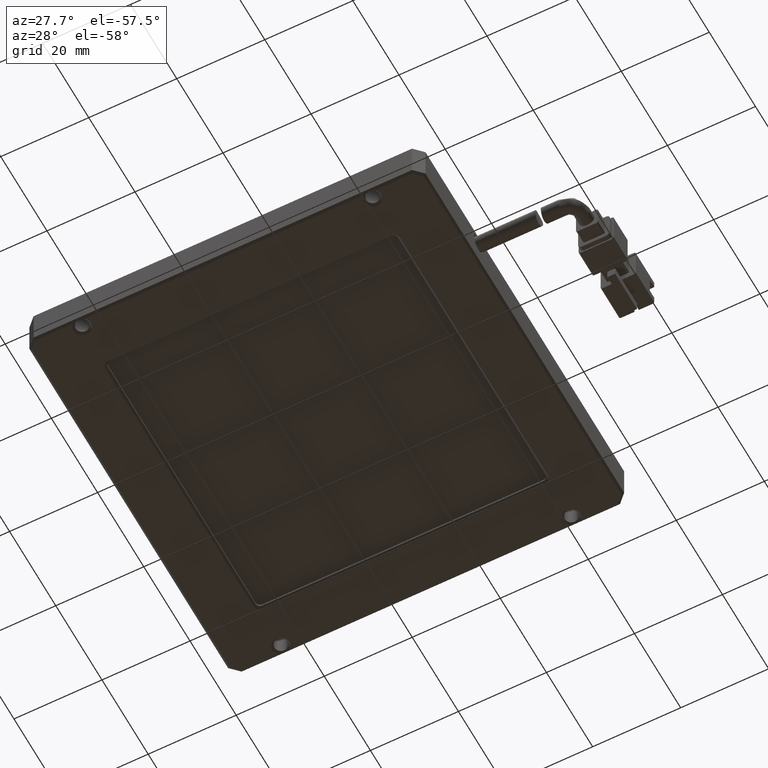
[diagram: clean part render]
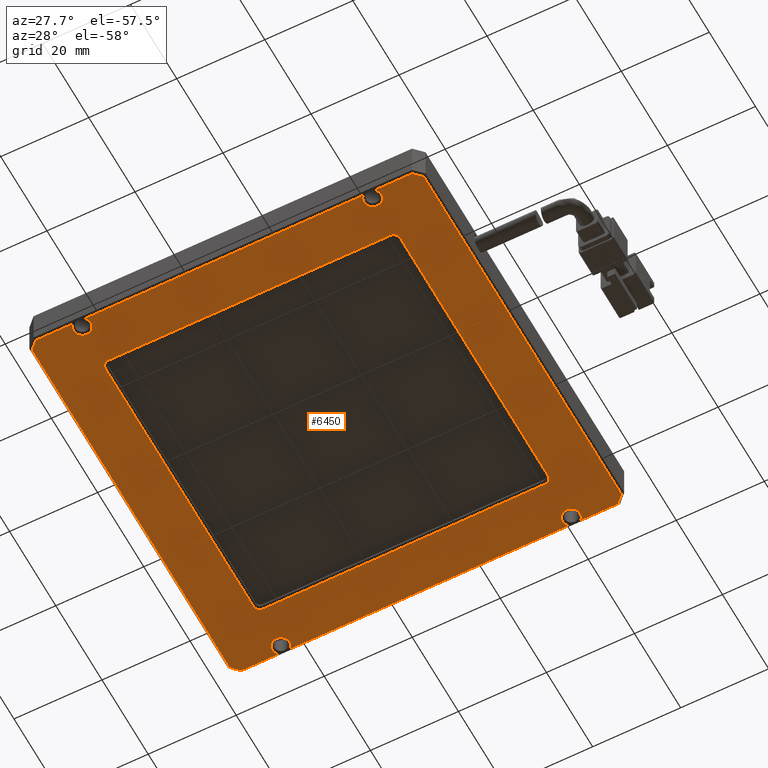
[diagram: same view with one face highlighted and labeled with its STEP entity id]
A machine part, auxiliary view. The second image highlights one B-rep face of the part: STEP entity #6450.
In plain terms, the highlighted planar face has unit normal (0, 0, -1).
Its self-contained STEP definition (entity closure, byte-faithful):
#224 = CARTESIAN_POINT ( 'NONE',  ( -65.07925925925926000, -15.05999999999999200, -2.999999999943156600 ) ) ;
#433 = FACE_OUTER_BOUND ( 'NONE', #9565, .T. ) ;
#475 = VERTEX_POINT ( 'NONE', #2181 ) ;
#509 = DIRECTION ( 'NONE',  ( -0.0000000000000000000, -0.0000000000000000000, 1.000000000000000000 ) ) ;
#515 = DIRECTION ( 'NONE',  ( -1.000000000000000000, 0.0000000000000000000, -0.0000000000000000000 ) ) ;
#605 = CARTESIAN_POINT ( 'NONE',  ( -74.87215247807270700, -16.55999999999999200, -3.000000000000000000 ) ) ;
#606 = DIRECTION ( 'NONE',  ( -0.0000000000000000000, -0.0000000000000000000, 1.000000000000000000 ) ) ;
#607 = EDGE_CURVE ( 'NONE', #475, #7741, #4373, .T. ) ;
#613 = CIRCLE ( 'NONE', #17851, 1.999999999921328700 ) ;
#670 = EDGE_CURVE ( 'NONE', #9635, #3807, #14570, .T. ) ;
#772 = ORIENTED_EDGE ( 'NONE', *, *, #12192, .T. ) ;
#929 = ORIENTED_EDGE ( 'NONE', *, *, #10877, .T. ) ;
#1027 = ORIENTED_EDGE ( 'NONE', *, *, #607, .T. ) ;
#1046 = VECTOR ( 'NONE', #15832, 1000.000000000000000 ) ;
#1052 = AXIS2_PLACEMENT_3D ( 'NONE', #1522, #11330, #2943 ) ;
#1067 = ORIENTED_EDGE ( 'NONE', *, *, #15503, .T. ) ;
#1085 = DIRECTION ( 'NONE',  ( -1.000000000000000000, 0.0000000000000000000, -0.0000000000000000000 ) ) ;
#1110 = CARTESIAN_POINT ( 'NONE',  ( 1.420740740740777900, -4.060000000000007600, -2.999999999999999600 ) ) ;
#1146 = CARTESIAN_POINT ( 'NONE',  ( -63.07925925930700800, -15.05999999999999200, -2.999999999943156600 ) ) ;
#1198 = ORIENTED_EDGE ( 'NONE', *, *, #3876, .T. ) ;
#1336 = EDGE_CURVE ( 'NONE', #7210, #7810, #15628, .T. ) ;
#1392 = CARTESIAN_POINT ( 'NONE',  ( 1.420740740740777900, 72.93999999999999800, -3.000000000000000000 ) ) ;
#1417 = EDGE_CURVE ( 'NONE', #2871, #9275, #2789, .T. ) ;
#1522 = CARTESIAN_POINT ( 'NONE',  ( 0.9207407407407497400, 70.93999999999999800, -3.000000000000000000 ) ) ;
#1641 = DIRECTION ( 'NONE',  ( -1.000000000000000000, 0.0000000000000000000, 0.0000000000000000000 ) ) ;
#1645 = CIRCLE ( 'NONE', #5120, 1.999999999952248400 ) ;
#1887 = DIRECTION ( 'NONE',  ( 0.0000000000000000000, 1.000000000000000000, 0.0000000000000000000 ) ) ;
#1924 = CARTESIAN_POINT ( 'NONE',  ( -66.40213491472324800, -16.56000000002841300, -2.999999999971578300 ) ) ;
#1988 = AXIS2_PLACEMENT_3D ( 'NONE', #224, #10046, #1641 ) ;
#2008 = VERTEX_POINT ( 'NONE', #1146 ) ;
#2157 = VECTOR ( 'NONE', #1085, 1000.000000000000000 ) ;
#2158 = ORIENTED_EDGE ( 'NONE', *, *, #1417, .T. ) ;
#2181 = CARTESIAN_POINT ( 'NONE',  ( -63.07925925930700800, 70.93999999999999800, -3.000000000000000000 ) ) ;
#2255 = ORIENTED_EDGE ( 'NONE', *, *, #3147, .T. ) ;
#2358 = VECTOR ( 'NONE', #8229, 1000.000000000000000 ) ;
#2399 = AXIS2_PLACEMENT_3D ( 'NONE', #10960, #2559, #12338 ) ;
#2559 = DIRECTION ( 'NONE',  ( -0.0000000000000000000, -0.0000000000000000000, 1.000000000000000000 ) ) ;
#2594 = CARTESIAN_POINT ( 'NONE',  ( -65.57925925925923100, 59.93999999999999100, -3.000000000000000000 ) ) ;
#2741 = ORIENTED_EDGE ( 'NONE', *, *, #3842, .T. ) ;
#2761 = EDGE_CURVE ( 'NONE', #6839, #9635, #17101, .T. ) ;
#2789 = LINE ( 'NONE', #14499, #13454 ) ;
#2871 = VERTEX_POINT ( 'NONE', #16192 ) ;
#2888 = VERTEX_POINT ( 'NONE', #16243 ) ;
#2943 = DIRECTION ( 'NONE',  ( -1.000000000000000000, 0.0000000000000000000, 0.0000000000000000000 ) ) ;
#2989 = CARTESIAN_POINT ( 'NONE',  ( -1.079259259180578700, -15.05999999999999000, -3.000000000000000000 ) ) ;
#3146 = EDGE_CURVE ( 'NONE', #12416, #6839, #8197, .T. ) ;
#3147 = EDGE_CURVE ( 'NONE', #12301, #475, #8649, .T. ) ;
#3184 = ORIENTED_EDGE ( 'NONE', *, *, #13880, .T. ) ;
#3204 = ORIENTED_EDGE ( 'NONE', *, *, #670, .T. ) ;
#3205 = AXIS2_PLACEMENT_3D ( 'NONE', #5257, #5081, #5028 ) ;
#3316 = CARTESIAN_POINT ( 'NONE',  ( 12.42074074074074600, -14.85289321881347400, -3.000000000000000000 ) ) ;
#3427 = LINE ( 'NONE', #13483, #6746 ) ;
#3540 = CARTESIAN_POINT ( 'NONE',  ( 10.71363395955419900, 72.43999999999998400, -2.999999999999996000 ) ) ;
#3564 = CARTESIAN_POINT ( 'NONE',  ( 2.243616396213607500, 72.43999999999999800, -3.000000000000000000 ) ) ;
#3593 = CARTESIAN_POINT ( 'NONE',  ( -0.07925925925925114700, 59.94000000000000500, -3.000000000000000000 ) ) ;
#3616 = ORIENTED_EDGE ( 'NONE', *, *, #17364, .T. ) ;
#3807 = VERTEX_POINT ( 'NONE', #16237 ) ;
#3842 = EDGE_CURVE ( 'NONE', #2888, #6978, #12928, .T. ) ;
#3876 = EDGE_CURVE ( 'NONE', #7587, #8656, #9263, .T. ) ;
#4018 = ORIENTED_EDGE ( 'NONE', *, *, #15980, .T. ) ;
#4036 = CARTESIAN_POINT ( 'NONE',  ( 10.71363395955419900, -16.55999999999999200, -3.000000000000001800 ) ) ;
#4140 = AXIS2_PLACEMENT_3D ( 'NONE', #4908, #4858, #4810 ) ;
#4344 = CARTESIAN_POINT ( 'NONE',  ( -77.07925925925924600, 72.43999999999999800, -3.000000000000000000 ) ) ;
#4373 = CIRCLE ( 'NONE', #7628, 1.999999999952248400 ) ;
#4435 = CARTESIAN_POINT ( 'NONE',  ( -0.07925925925922339100, -5.559999999993400400, -2.999999999985789100 ) ) ;
#4704 = CARTESIAN_POINT ( 'NONE',  ( -77.07925925925924600, 72.43999999999999800, -3.000000000000000000 ) ) ;
#4770 = CIRCLE ( 'NONE', #12581, 1.499999999930903700 ) ;
#4810 = DIRECTION ( 'NONE',  ( -1.000000000000000000, 0.0000000000000000000, 0.0000000000000000000 ) ) ;
#4837 = LINE ( 'NONE', #3316, #1046 ) ;
#4858 = DIRECTION ( 'NONE',  ( -0.0000000000000000000, -0.0000000000000000000, 1.000000000000000000 ) ) ;
#4908 = CARTESIAN_POINT ( 'NONE',  ( -65.07925925925926000, 70.93999999999999800, -3.000000000000000000 ) ) ;
#5017 = EDGE_CURVE ( 'NONE', #9874, #9656, #4770, .T. ) ;
#5028 = DIRECTION ( 'NONE',  ( -1.000000000000000000, 0.0000000000000000000, 0.0000000000000000000 ) ) ;
#5035 = DIRECTION ( 'NONE',  ( -1.000000000000000000, 0.0000000000000000000, 0.0000000000000000000 ) ) ;
#5040 = CIRCLE ( 'NONE', #1988, 1.999999999952248400 ) ;
#5052 = CARTESIAN_POINT ( 'NONE',  ( -64.07925925925923100, -5.559999999968503000, -2.999999999985789100 ) ) ;
#5076 = ORIENTED_EDGE ( 'NONE', *, *, #11052, .T. ) ;
#5081 = DIRECTION ( 'NONE',  ( -0.0000000000000000000, -0.0000000000000000000, 1.000000000000000000 ) ) ;
#5120 = AXIS2_PLACEMENT_3D ( 'NONE', #14518, #6246, #15878 ) ;
#5143 = VERTEX_POINT ( 'NONE', #16437 ) ;
#5236 = CARTESIAN_POINT ( 'NONE',  ( 10.71363395955417300, 72.43999999999999800, -3.000000000000000000 ) ) ;
#5257 = CARTESIAN_POINT ( 'NONE',  ( 0.9207407407407497400, -15.05999999999999000, -3.000000000000000000 ) ) ;
#5315 = VECTOR ( 'NONE', #16675, 1000.000000000000000 ) ;
#5359 = VECTOR ( 'NONE', #7438, 1000.000000000000000 ) ;
#5425 = EDGE_CURVE ( 'NONE', #7741, #9958, #11019, .T. ) ;
#5431 = DIRECTION ( 'NONE',  ( -0.0000000000000000000, -1.000000000000000000, -0.0000000000000000000 ) ) ;
#5553 = VECTOR ( 'NONE', #14285, 1000.000000000000000 ) ;
#5562 = EDGE_CURVE ( 'NONE', #9275, #8901, #6042, .T. ) ;
#5580 = CARTESIAN_POINT ( 'NONE',  ( -77.07925925925924600, -16.55999999999999200, -3.000000000000000000 ) ) ;
#5924 = EDGE_CURVE ( 'NONE', #7928, #12301, #17698, .T. ) ;
#5959 = LINE ( 'NONE', #8100, #2157 ) ;
#6042 = LINE ( 'NONE', #17075, #17074 ) ;
#6045 = CIRCLE ( 'NONE', #16225, 1.499999999930903700 ) ;
#6103 = DIRECTION ( 'NONE',  ( -1.000000000000000000, 0.0000000000000000000, -0.0000000000000000000 ) ) ;
#6158 = DIRECTION ( 'NONE',  ( -0.0000000000000000000, -0.0000000000000000000, 1.000000000000000000 ) ) ;
#6246 = DIRECTION ( 'NONE',  ( -0.0000000000000000000, -0.0000000000000000000, 1.000000000000000000 ) ) ;
#6265 = AXIS2_PLACEMENT_3D ( 'NONE', #14427, #6158, #15812 ) ;
#6280 = VERTEX_POINT ( 'NONE', #5052 ) ;
#6403 = ORIENTED_EDGE ( 'NONE', *, *, #11018, .T. ) ;
#6435 = ORIENTED_EDGE ( 'NONE', *, *, #14657, .T. ) ;
#6450 = ADVANCED_FACE ( 'NONE', ( #433, #11157 ), #9529, .T. ) ;
#6531 = AXIS2_PLACEMENT_3D ( 'NONE', #7479, #17167, #8895 ) ;
#6668 = DIRECTION ( 'NONE',  ( 0.7071067811865474600, -0.7071067811865474600, 0.0000000000000000000 ) ) ;
#6745 = CIRCLE ( 'NONE', #16576, 1.499999999966375300 ) ;
#6746 = VECTOR ( 'NONE', #7966, 1000.000000000000100 ) ;
#6839 = VERTEX_POINT ( 'NONE', #2989 ) ;
#6978 = VERTEX_POINT ( 'NONE', #1924 ) ;
#7144 = VERTEX_POINT ( 'NONE', #13476 ) ;
#7210 = VERTEX_POINT ( 'NONE', #1110 ) ;
#7232 = EDGE_CURVE ( 'NONE', #9656, #7144, #11012, .T. ) ;
#7319 = ORIENTED_EDGE ( 'NONE', *, *, #5562, .T. ) ;
#7333 = VECTOR ( 'NONE', #5431, 1000.000000000000000 ) ;
#7342 = VECTOR ( 'NONE', #15426, 1000.000000000000000 ) ;
#7374 = DIRECTION ( 'NONE',  ( -1.000000000000000000, 2.775557561690745200E-014, 0.0000000000000000000 ) ) ;
#7428 = DIRECTION ( 'NONE',  ( -0.0000000000000000000, -0.0000000000000000000, 1.000000000000000000 ) ) ;
#7438 = DIRECTION ( 'NONE',  ( 1.000000000000000000, -0.0000000000000000000, 0.0000000000000000000 ) ) ;
#7479 = CARTESIAN_POINT ( 'NONE',  ( 0.9207407407407497400, 70.93999999999999800, -3.000000000000000000 ) ) ;
#7488 = CARTESIAN_POINT ( 'NONE',  ( -64.07925925925923100, 59.94000000000000500, -3.000000000000000000 ) ) ;
#7546 = ORIENTED_EDGE ( 'NONE', *, *, #16352, .T. ) ;
#7587 = VERTEX_POINT ( 'NONE', #3564 ) ;
#7610 = ORIENTED_EDGE ( 'NONE', *, *, #5017, .T. ) ;
#7623 = CIRCLE ( 'NONE', #6531, 1.999999999921328700 ) ;
#7628 = AXIS2_PLACEMENT_3D ( 'NONE', #15750, #14592, #14543 ) ;
#7722 = CARTESIAN_POINT ( 'NONE',  ( -67.07925925921149700, 70.93999999999999800, -3.000000000000000000 ) ) ;
#7741 = VERTEX_POINT ( 'NONE', #16401 ) ;
#7810 = VERTEX_POINT ( 'NONE', #13696 ) ;
#7928 = VERTEX_POINT ( 'NONE', #13007 ) ;
#7963 = VERTEX_POINT ( 'NONE', #10311 ) ;
#7966 = DIRECTION ( 'NONE',  ( -0.7071067811865445800, 0.7071067811865504600, 0.0000000000000000000 ) ) ;
#8003 = DIRECTION ( 'NONE',  ( -0.0000000000000000000, -0.0000000000000000000, 1.000000000000000000 ) ) ;
#8037 = AXIS2_PLACEMENT_3D ( 'NONE', #3593, #13315, #5035 ) ;
#8100 = CARTESIAN_POINT ( 'NONE',  ( -77.07925925925924600, -16.55999999999999200, -3.000000000000000000 ) ) ;
#8197 = CIRCLE ( 'NONE', #3205, 1.999999999921328700 ) ;
#8206 = EDGE_CURVE ( 'NONE', #6978, #9516, #5959, .T. ) ;
#8229 = DIRECTION ( 'NONE',  ( 1.000000000000000000, -0.0000000000000000000, 0.0000000000000000000 ) ) ;
#8277 = CARTESIAN_POINT ( 'NONE',  ( -77.07925925925924600, 72.93999999999999800, -3.000000000000000000 ) ) ;
#8294 = VECTOR ( 'NONE', #1887, 1000.000000000000000 ) ;
#8363 = ORIENTED_EDGE ( 'NONE', *, *, #11206, .T. ) ;
#8456 = LINE ( 'NONE', #10325, #12127 ) ;
#8598 = VERTEX_POINT ( 'NONE', #11859 ) ;
#8649 = CIRCLE ( 'NONE', #4140, 1.999999999952248400 ) ;
#8656 = VERTEX_POINT ( 'NONE', #3540 ) ;
#8814 = DIRECTION ( 'NONE',  ( 0.7071067811865445800, 0.7071067811865503500, 0.0000000000000000000 ) ) ;
#8895 = DIRECTION ( 'NONE',  ( -1.000000000000000000, 0.0000000000000000000, 0.0000000000000000000 ) ) ;
#8901 = VERTEX_POINT ( 'NONE', #11159 ) ;
#8921 = ORIENTED_EDGE ( 'NONE', *, *, #12823, .T. ) ;
#8933 = CARTESIAN_POINT ( 'NONE',  ( -0.07925925925922339100, -4.059999999999994300, -3.000000000000000000 ) ) ;
#9025 = CARTESIAN_POINT ( 'NONE',  ( 0.9207407407407497400, 70.93999999999999800, -3.000000000000000000 ) ) ;
#9122 = CARTESIAN_POINT ( 'NONE',  ( -77.07925925925924600, -16.55999999999999200, -3.000000000000000000 ) ) ;
#9157 = ORIENTED_EDGE ( 'NONE', *, *, #3146, .T. ) ;
#9263 = LINE ( 'NONE', #15410, #5553 ) ;
#9275 = VERTEX_POINT ( 'NONE', #9784 ) ;
#9516 = VERTEX_POINT ( 'NONE', #605 ) ;
#9525 = CARTESIAN_POINT ( 'NONE',  ( -0.4021349147320801800, -16.55999999999999200, -3.000000000000000000 ) ) ;
#9529 = PLANE ( 'NONE',  #12265 ) ;
#9565 = EDGE_LOOP ( 'NONE', ( #3616, #9157, #13766, #3204, #8921, #5076, #2741, #15562, #4018, #2158, #7319, #15814, #13540, #2255, #1027, #12459, #772, #8363, #6403, #1198, #15069, #3184, #1067, #6435 ) ) ;
#9635 = VERTEX_POINT ( 'NONE', #9525 ) ;
#9646 = DIRECTION ( 'NONE',  ( -1.000000000000000000, 0.0000000000000000000, -0.0000000000000000000 ) ) ;
#9656 = VERTEX_POINT ( 'NONE', #2594 ) ;
#9673 = VERTEX_POINT ( 'NONE', #4036 ) ;
#9784 = CARTESIAN_POINT ( 'NONE',  ( -76.57925925925924600, 70.73289321881341600, -2.999999999999999100 ) ) ;
#9874 = VERTEX_POINT ( 'NONE', #11434 ) ;
#9958 = VERTEX_POINT ( 'NONE', #13035 ) ;
#10030 = VERTEX_POINT ( 'NONE', #10405 ) ;
#10046 = DIRECTION ( 'NONE',  ( -0.0000000000000000000, -0.0000000000000000000, 1.000000000000000000 ) ) ;
#10311 = CARTESIAN_POINT ( 'NONE',  ( 12.42074074074073300, 70.73289321881344400, -3.000000000000001800 ) ) ;
#10319 = DIRECTION ( 'NONE',  ( -1.000000000000000000, 0.0000000000000000000, 0.0000000000000000000 ) ) ;
#10325 = CARTESIAN_POINT ( 'NONE',  ( -77.07925925925924600, 61.44000000000001200, -3.000000000000000000 ) ) ;
#10405 = CARTESIAN_POINT ( 'NONE',  ( -1.079259259180578700, 70.93999999999999800, -3.000000000000000000 ) ) ;
#10419 = DIRECTION ( 'NONE',  ( -1.000000000000000000, 0.0000000000000000000, 0.0000000000000000000 ) ) ;
#10609 = VERTEX_POINT ( 'NONE', #17249 ) ;
#10690 = DIRECTION ( 'NONE',  ( -1.000000000000000000, 0.0000000000000000000, 0.0000000000000000000 ) ) ;
#10717 = LINE ( 'NONE', #5236, #14367 ) ;
#10801 = EDGE_CURVE ( 'NONE', #8656, #7963, #10717, .T. ) ;
#10822 = ORIENTED_EDGE ( 'NONE', *, *, #1336, .T. ) ;
#10877 = EDGE_CURVE ( 'NONE', #6280, #11032, #13474, .T. ) ;
#10911 = VERTEX_POINT ( 'NONE', #16461 ) ;
#10915 = VECTOR ( 'NONE', #6103, 1000.000000000000000 ) ;
#10960 = CARTESIAN_POINT ( 'NONE',  ( -65.07925925925926000, 70.93999999999999800, -3.000000000000000000 ) ) ;
#11012 = LINE ( 'NONE', #12345, #7333 ) ;
#11018 = EDGE_CURVE ( 'NONE', #10911, #7587, #16043, .T. ) ;
#11019 = LINE ( 'NONE', #4344, #7342 ) ;
#11032 = VERTEX_POINT ( 'NONE', #4435 ) ;
#11052 = EDGE_CURVE ( 'NONE', #2008, #2888, #5040, .T. ) ;
#11123 = VECTOR ( 'NONE', #16647, 1000.000000000000000 ) ;
#11157 = FACE_BOUND ( 'NONE', #12171, .T. ) ;
#11159 = CARTESIAN_POINT ( 'NONE',  ( -74.87215247807269200, 72.43999999999998400, -3.000000000000000000 ) ) ;
#11186 = ORIENTED_EDGE ( 'NONE', *, *, #16571, .T. ) ;
#11206 = EDGE_CURVE ( 'NONE', #10030, #10911, #613, .T. ) ;
#11330 = DIRECTION ( 'NONE',  ( -0.0000000000000000000, -0.0000000000000000000, 1.000000000000000000 ) ) ;
#11434 = CARTESIAN_POINT ( 'NONE',  ( -64.07925925925923100, 61.43999999998227000, -3.000000000000000000 ) ) ;
#11739 = DIRECTION ( 'NONE',  ( -0.0000000000000000000, -0.0000000000000000000, 1.000000000000000000 ) ) ;
#11859 = CARTESIAN_POINT ( 'NONE',  ( 12.42074074074073300, -14.85289321881347400, -3.000000000000000000 ) ) ;
#12127 = VECTOR ( 'NONE', #515, 1000.000000000000000 ) ;
#12171 = EDGE_LOOP ( 'NONE', ( #15159, #11186, #929, #13425, #10822, #17272, #7546, #7610 ) ) ;
#12192 = EDGE_CURVE ( 'NONE', #9958, #10030, #7623, .T. ) ;
#12265 = AXIS2_PLACEMENT_3D ( 'NONE', #8277, #17948, #9646 ) ;
#12301 = VERTEX_POINT ( 'NONE', #7722 ) ;
#12332 = EDGE_CURVE ( 'NONE', #7810, #10609, #16667, .T. ) ;
#12338 = DIRECTION ( 'NONE',  ( -1.000000000000000000, -1.387778780814580000E-014, 0.0000000000000000000 ) ) ;
#12345 = CARTESIAN_POINT ( 'NONE',  ( -65.57925925925923100, 72.93999999999999800, -3.000000000000000000 ) ) ;
#12416 = VERTEX_POINT ( 'NONE', #16196 ) ;
#12459 = ORIENTED_EDGE ( 'NONE', *, *, #5425, .T. ) ;
#12581 = AXIS2_PLACEMENT_3D ( 'NONE', #7488, #7428, #7374 ) ;
#12786 = CARTESIAN_POINT ( 'NONE',  ( 0.9207407407407497400, -15.05999999999999000, -3.000000000000000000 ) ) ;
#12813 = EDGE_CURVE ( 'NONE', #11032, #7210, #6745, .T. ) ;
#12823 = EDGE_CURVE ( 'NONE', #3807, #2008, #1645, .T. ) ;
#12928 = CIRCLE ( 'NONE', #17643, 1.999999999952248400 ) ;
#13007 = CARTESIAN_POINT ( 'NONE',  ( -66.40213491475545000, 72.43999999999999800, -3.000000000000000000 ) ) ;
#13035 = CARTESIAN_POINT ( 'NONE',  ( -0.4021349147320801800, 72.43999999999999800, -3.000000000000000000 ) ) ;
#13315 = DIRECTION ( 'NONE',  ( -0.0000000000000000000, -0.0000000000000000000, 1.000000000000000000 ) ) ;
#13425 = ORIENTED_EDGE ( 'NONE', *, *, #12813, .T. ) ;
#13454 = VECTOR ( 'NONE', #13626, 1000.000000000000000 ) ;
#13474 = LINE ( 'NONE', #15082, #2358 ) ;
#13476 = CARTESIAN_POINT ( 'NONE',  ( -65.57925925924149600, -4.059999999999994300, -3.000000000000000000 ) ) ;
#13483 = CARTESIAN_POINT ( 'NONE',  ( -74.87215247807270700, -16.55999999999999200, -3.000000000000000000 ) ) ;
#13540 = ORIENTED_EDGE ( 'NONE', *, *, #5924, .T. ) ;
#13626 = DIRECTION ( 'NONE',  ( 0.0000000000000000000, 1.000000000000000000, 0.0000000000000000000 ) ) ;
#13696 = CARTESIAN_POINT ( 'NONE',  ( 1.420740740751449800, 59.94000000000000500, -3.000000000000000000 ) ) ;
#13766 = ORIENTED_EDGE ( 'NONE', *, *, #2761, .T. ) ;
#13880 = EDGE_CURVE ( 'NONE', #7963, #8598, #15907, .T. ) ;
#14013 = DIRECTION ( 'NONE',  ( -1.000000000000000000, 0.0000000000000000000, 0.0000000000000000000 ) ) ;
#14032 = DIRECTION ( 'NONE',  ( -0.0000000000000000000, -0.0000000000000000000, 1.000000000000000000 ) ) ;
#14076 = CARTESIAN_POINT ( 'NONE',  ( -65.07925925925926000, -15.05999999999999200, -2.999999999943156600 ) ) ;
#14193 = CIRCLE ( 'NONE', #6265, 1.999999999921328700 ) ;
#14241 = AXIS2_PLACEMENT_3D ( 'NONE', #12786, #11739, #10690 ) ;
#14285 = DIRECTION ( 'NONE',  ( 1.000000000000000000, -0.0000000000000000000, 0.0000000000000000000 ) ) ;
#14367 = VECTOR ( 'NONE', #6668, 1000.000000000000100 ) ;
#14427 = CARTESIAN_POINT ( 'NONE',  ( 0.9207407407407497400, -15.05999999999999000, -3.000000000000000000 ) ) ;
#14499 = CARTESIAN_POINT ( 'NONE',  ( -76.57925925925924600, 72.93999999999999800, -3.000000000000000000 ) ) ;
#14518 = CARTESIAN_POINT ( 'NONE',  ( -65.07925925925926000, -15.05999999999999200, -2.999999999943156600 ) ) ;
#14543 = DIRECTION ( 'NONE',  ( -1.000000000000000000, -6.938893904072900200E-015, 0.0000000000000000000 ) ) ;
#14570 = LINE ( 'NONE', #9122, #10915 ) ;
#14592 = DIRECTION ( 'NONE',  ( -0.0000000000000000000, -0.0000000000000000000, 1.000000000000000000 ) ) ;
#14657 = EDGE_CURVE ( 'NONE', #9673, #5143, #14771, .T. ) ;
#14771 = LINE ( 'NONE', #5580, #11123 ) ;
#15069 = ORIENTED_EDGE ( 'NONE', *, *, #10801, .T. ) ;
#15082 = CARTESIAN_POINT ( 'NONE',  ( -77.07925925925924600, -5.559999999999995200, -3.000000000000000000 ) ) ;
#15159 = ORIENTED_EDGE ( 'NONE', *, *, #7232, .T. ) ;
#15347 = CARTESIAN_POINT ( 'NONE',  ( 12.42074074074074600, 72.93999999999999800, -3.000000000000000000 ) ) ;
#15410 = CARTESIAN_POINT ( 'NONE',  ( -77.07925925925924600, 72.43999999999999800, -3.000000000000000000 ) ) ;
#15426 = DIRECTION ( 'NONE',  ( 1.000000000000000000, -0.0000000000000000000, 0.0000000000000000000 ) ) ;
#15503 = EDGE_CURVE ( 'NONE', #8598, #9673, #4837, .T. ) ;
#15562 = ORIENTED_EDGE ( 'NONE', *, *, #8206, .T. ) ;
#15628 = LINE ( 'NONE', #1392, #8294 ) ;
#15750 = CARTESIAN_POINT ( 'NONE',  ( -65.07925925925926000, 70.93999999999999800, -3.000000000000000000 ) ) ;
#15812 = DIRECTION ( 'NONE',  ( -1.000000000000000000, -1.734723476045043600E-015, 0.0000000000000000000 ) ) ;
#15814 = ORIENTED_EDGE ( 'NONE', *, *, #16926, .T. ) ;
#15832 = DIRECTION ( 'NONE',  ( -0.7071067811865532300, -0.7071067811865418000, 0.0000000000000000000 ) ) ;
#15878 = DIRECTION ( 'NONE',  ( -1.000000000000000000, 1.387778780814580000E-014, 0.0000000000000000000 ) ) ;
#15907 = LINE ( 'NONE', #15347, #5315 ) ;
#15948 = LINE ( 'NONE', #4704, #5359 ) ;
#15980 = EDGE_CURVE ( 'NONE', #9516, #2871, #3427, .T. ) ;
#16043 = CIRCLE ( 'NONE', #1052, 1.999999999921328700 ) ;
#16192 = CARTESIAN_POINT ( 'NONE',  ( -76.57925925925924600, -14.85289321881343100, -3.000000000000000000 ) ) ;
#16196 = CARTESIAN_POINT ( 'NONE',  ( 2.920740740662078200, -15.05999999999999000, -3.000000000000000000 ) ) ;
#16225 = AXIS2_PLACEMENT_3D ( 'NONE', #16236, #8003, #17664 ) ;
#16236 = CARTESIAN_POINT ( 'NONE',  ( -64.07925925925923100, -4.059999999999994300, -3.000000000000000000 ) ) ;
#16237 = CARTESIAN_POINT ( 'NONE',  ( -63.75638360379526400, -16.56000000002841300, -2.999999999971578300 ) ) ;
#16243 = CARTESIAN_POINT ( 'NONE',  ( -67.07925925921149700, -15.05999999999999200, -2.999999999943156600 ) ) ;
#16352 = EDGE_CURVE ( 'NONE', #10609, #9874, #8456, .T. ) ;
#16401 = CARTESIAN_POINT ( 'NONE',  ( -63.75638360376304100, 72.43999999999999800, -3.000000000000000000 ) ) ;
#16437 = CARTESIAN_POINT ( 'NONE',  ( 2.243616396213607500, -16.55999999999999200, -3.000000000000000000 ) ) ;
#16461 = CARTESIAN_POINT ( 'NONE',  ( 2.920740740662078200, 70.93999999999999800, -3.000000000000000000 ) ) ;
#16571 = EDGE_CURVE ( 'NONE', #7144, #6280, #6045, .T. ) ;
#16576 = AXIS2_PLACEMENT_3D ( 'NONE', #8933, #509, #10319 ) ;
#16647 = DIRECTION ( 'NONE',  ( -1.000000000000000000, 0.0000000000000000000, -0.0000000000000000000 ) ) ;
#16667 = CIRCLE ( 'NONE', #8037, 1.499999999966347800 ) ;
#16675 = DIRECTION ( 'NONE',  ( -0.0000000000000000000, -1.000000000000000000, -0.0000000000000000000 ) ) ;
#16926 = EDGE_CURVE ( 'NONE', #8901, #7928, #15948, .T. ) ;
#17074 = VECTOR ( 'NONE', #8814, 1000.000000000000100 ) ;
#17075 = CARTESIAN_POINT ( 'NONE',  ( -76.57925925925924600, 70.73289321881343000, -3.000000000000000000 ) ) ;
#17101 = CIRCLE ( 'NONE', #14241, 1.999999999921328700 ) ;
#17167 = DIRECTION ( 'NONE',  ( -0.0000000000000000000, -0.0000000000000000000, 1.000000000000000000 ) ) ;
#17249 = CARTESIAN_POINT ( 'NONE',  ( -0.07925925925923726900, 61.44000000000001200, -3.000000000000000000 ) ) ;
#17272 = ORIENTED_EDGE ( 'NONE', *, *, #12332, .T. ) ;
#17364 = EDGE_CURVE ( 'NONE', #5143, #12416, #14193, .T. ) ;
#17643 = AXIS2_PLACEMENT_3D ( 'NONE', #14076, #14032, #14013 ) ;
#17664 = DIRECTION ( 'NONE',  ( -1.000000000000000000, 0.0000000000000000000, 0.0000000000000000000 ) ) ;
#17698 = CIRCLE ( 'NONE', #2399, 1.999999999952248400 ) ;
#17851 = AXIS2_PLACEMENT_3D ( 'NONE', #9025, #606, #10419 ) ;
#17948 = DIRECTION ( 'NONE',  ( 0.0000000000000000000, 0.0000000000000000000, -1.000000000000000000 ) ) ;